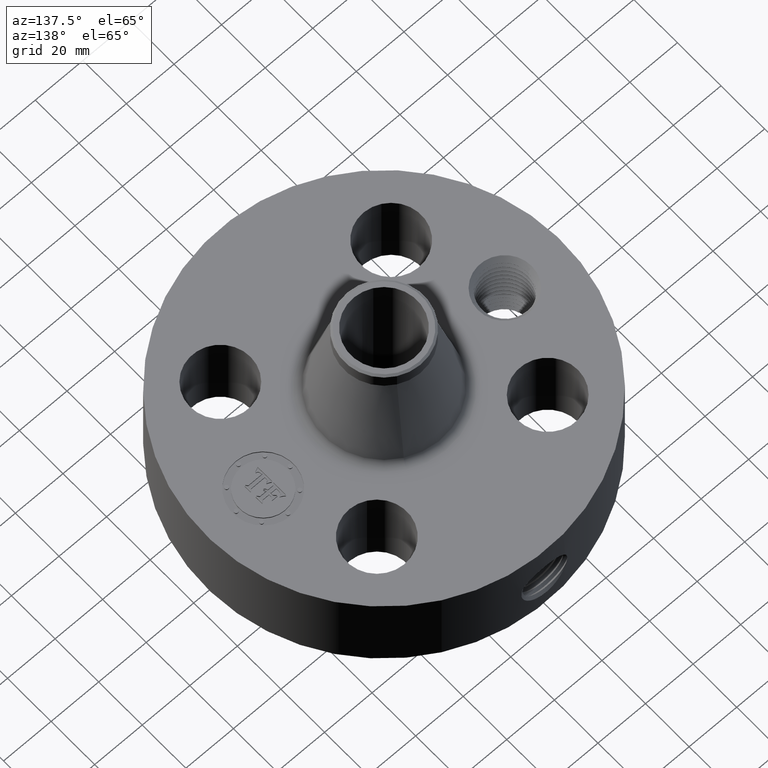
[diagram: clean part render]
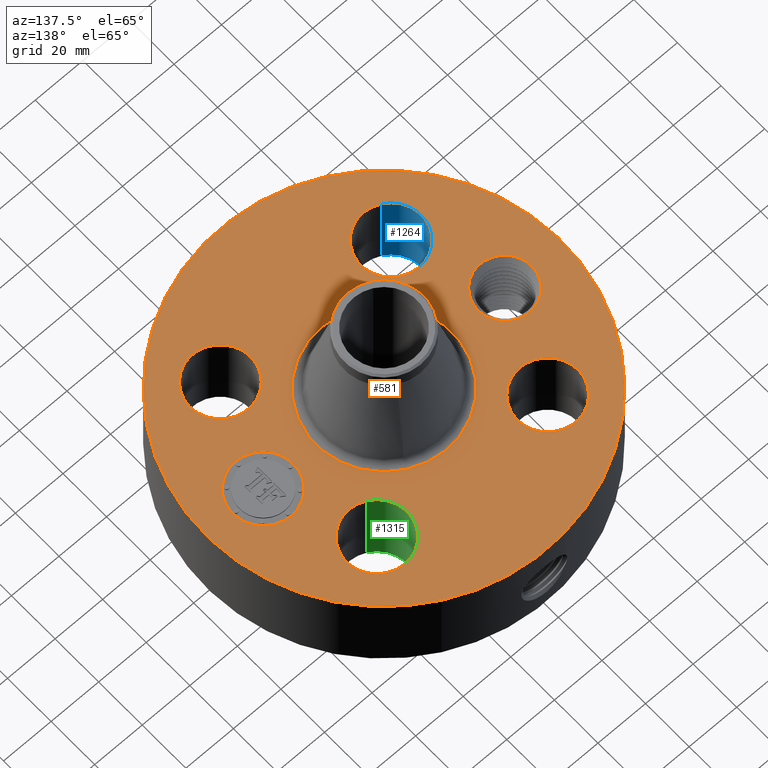
[diagram: same view with three faces highlighted in distinct colors, each labeled with its STEP entity id]
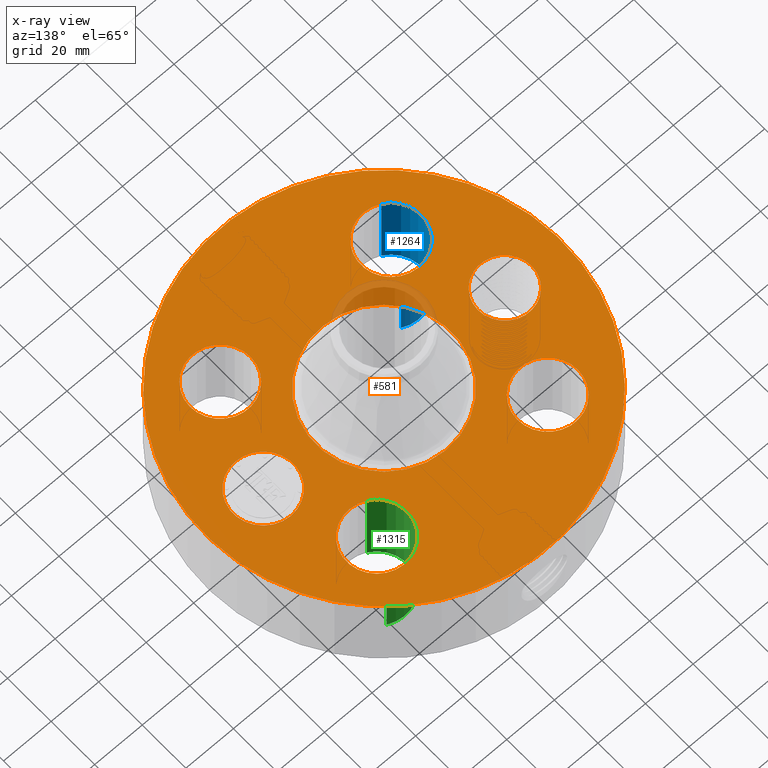
[diagram: x-ray of the same camera — body ghosted, the three highlighted faces saturated]
A machine part, auxiliary view with three faces highlighted in distinct colors.
The next image is the same camera in x-ray (body ghosted, the three faces saturated) — at least one of them is partly hidden behind the body in this view.
Their STEP definitions:

[orange] entity #581 — the highlighted planar face has unit normal (0, 0, -1).
#58=AXIS2_PLACEMENT_3D('Circle Axis2P3D',#56,#57,$) ;
#318=AXIS2_PLACEMENT_3D('Circle Axis2P3D',#316,#317,$) ;
#449=AXIS2_PLACEMENT_3D('Plane Axis2P3D',#446,#447,#448) ;
#457=AXIS2_PLACEMENT_3D('Circle Axis2P3D',#455,#456,$) ;
#466=AXIS2_PLACEMENT_3D('Circle Axis2P3D',#464,#465,$) ;
#475=AXIS2_PLACEMENT_3D('Circle Axis2P3D',#473,#474,$) ;
#484=AXIS2_PLACEMENT_3D('Circle Axis2P3D',#482,#483,$) ;
#493=AXIS2_PLACEMENT_3D('Circle Axis2P3D',#491,#492,$) ;
#502=AXIS2_PLACEMENT_3D('Circle Axis2P3D',#500,#501,$) ;
#511=AXIS2_PLACEMENT_3D('Circle Axis2P3D',#509,#510,$) ;
#520=AXIS2_PLACEMENT_3D('Circle Axis2P3D',#518,#519,$) ;
#529=AXIS2_PLACEMENT_3D('Circle Axis2P3D',#527,#528,$) ;
#538=AXIS2_PLACEMENT_3D('Circle Axis2P3D',#536,#537,$) ;
#547=AXIS2_PLACEMENT_3D('Circle Axis2P3D',#545,#546,$) ;
#556=AXIS2_PLACEMENT_3D('Circle Axis2P3D',#554,#555,$) ;
#565=AXIS2_PLACEMENT_3D('Circle Axis2P3D',#563,#564,$) ;
#574=AXIS2_PLACEMENT_3D('Circle Axis2P3D',#572,#573,$) ;
#53=CARTESIAN_POINT('Vertex',(-1.4095110835,-2.58009273197,1.75000000001)) ;
#56=CARTESIAN_POINT('Axis2P3D Location',(0.,0.,1.75000000001)) ;
#60=CARTESIAN_POINT('Vertex',(1.4095110835,2.58009273197,1.75000000001)) ;
#316=CARTESIAN_POINT('Axis2P3D Location',(0.,0.,1.75000000001)) ;
#446=CARTESIAN_POINT('Axis2P3D Location',(0.,2.94000000001,1.75000000001)) ;
#455=CARTESIAN_POINT('Axis2P3D Location',(-2.00000000001,5.59482469102E-016,1.75000000001)) ;
#459=CARTESIAN_POINT('Vertex',(-2.38859355841,0.212289628495,1.75000000001)) ;
#461=CARTESIAN_POINT('Vertex',(-1.6114064416,-0.212289628495,1.75000000001)) ;
#464=CARTESIAN_POINT('Axis2P3D Location',(-2.00000000001,5.59482469102E-016,1.75000000001)) ;
#473=CARTESIAN_POINT('Axis2P3D Location',(1.41421356238,-1.41421356238,1.75000000001)) ;
#477=CARTESIAN_POINT('Vertex',(0.975422281432,-1.17450079308,1.75000000001)) ;
#479=CARTESIAN_POINT('Vertex',(1.85300484333,-1.65392633168,1.75000000001)) ;
#482=CARTESIAN_POINT('Axis2P3D Location',(1.41421356238,-1.41421356238,1.75000000001)) ;
#491=CARTESIAN_POINT('Axis2P3D Location',(0.,0.,1.75000000001)) ;
#495=CARTESIAN_POINT('Vertex',(-0.538790503479,-0.986249401194,1.75000000001)) ;
#497=CARTESIAN_POINT('Vertex',(0.538790503479,0.986249401194,1.75000000001)) ;
#500=CARTESIAN_POINT('Axis2P3D Location',(0.,0.,1.75000000001)) ;
#509=CARTESIAN_POINT('Axis2P3D Location',(-1.41421356238,-1.41421356238,1.75000000001)) ;
#513=CARTESIAN_POINT('Vertex',(-1.65392633168,-1.85300484333,1.75000000001)) ;
#515=CARTESIAN_POINT('Vertex',(-1.17450079308,-0.975422281432,1.75000000001)) ;
#518=CARTESIAN_POINT('Axis2P3D Location',(-1.41421356238,-1.41421356238,1.75000000001)) ;
#527=CARTESIAN_POINT('Axis2P3D Location',(-1.41421356238,1.41421356238,1.75000000001)) ;
#531=CARTESIAN_POINT('Vertex',(-1.85300484333,1.65392633168,1.75000000001)) ;
#533=CARTESIAN_POINT('Vertex',(-0.975422281432,1.17450079308,1.75000000001)) ;
#536=CARTESIAN_POINT('Axis2P3D Location',(-1.41421356238,1.41421356238,1.75000000001)) ;
#545=CARTESIAN_POINT('Axis2P3D Location',(1.41421356238,1.41421356238,1.75000000001)) ;
#549=CARTESIAN_POINT('Vertex',(1.65392633168,1.85300484333,1.75000000001)) ;
#551=CARTESIAN_POINT('Vertex',(1.17450079308,0.975422281432,1.75000000001)) ;
#554=CARTESIAN_POINT('Axis2P3D Location',(1.41421356238,1.41421356238,1.75000000001)) ;
#563=CARTESIAN_POINT('Axis2P3D Location',(2.00000000001,-5.03534222192E-015,1.75000000001)) ;
#567=CARTESIAN_POINT('Vertex',(2.00000000001,0.499999995002,1.75000000001)) ;
#569=CARTESIAN_POINT('Vertex',(2.00000000001,-0.499999995002,1.75000000001)) ;
#572=CARTESIAN_POINT('Axis2P3D Location',(2.00000000001,-5.03534222192E-015,1.75000000001)) ;
#57=DIRECTION('Axis2P3D Direction',(0.,0.,-0.0393700787402)) ;
#317=DIRECTION('Axis2P3D Direction',(0.,0.,-0.0393700787402)) ;
#447=DIRECTION('Axis2P3D Direction',(0.,0.,-0.0393700787402)) ;
#448=DIRECTION('Axis2P3D XDirection',(0.0393700787402,0.,0.)) ;
#456=DIRECTION('Axis2P3D Direction',(0.,0.,-0.0393700787402)) ;
#465=DIRECTION('Axis2P3D Direction',(0.,0.,-0.0393700787402)) ;
#474=DIRECTION('Axis2P3D Direction',(0.,0.,-0.0393700787402)) ;
#483=DIRECTION('Axis2P3D Direction',(0.,0.,-0.0393700787402)) ;
#492=DIRECTION('Axis2P3D Direction',(0.,0.,-0.0393700787402)) ;
#501=DIRECTION('Axis2P3D Direction',(0.,0.,-0.0393700787402)) ;
#510=DIRECTION('Axis2P3D Direction',(0.,0.,-0.0393700787402)) ;
#519=DIRECTION('Axis2P3D Direction',(0.,0.,-0.0393700787402)) ;
#528=DIRECTION('Axis2P3D Direction',(0.,0.,-0.0393700787402)) ;
#537=DIRECTION('Axis2P3D Direction',(0.,0.,-0.0393700787402)) ;
#546=DIRECTION('Axis2P3D Direction',(0.,0.,-0.0393700787402)) ;
#555=DIRECTION('Axis2P3D Direction',(0.,0.,-0.0393700787402)) ;
#564=DIRECTION('Axis2P3D Direction',(0.,0.,-0.0393700787402)) ;
#573=DIRECTION('Axis2P3D Direction',(0.,0.,-0.0393700787402)) ;
#452=ORIENTED_EDGE('',*,*,#320,.F.) ;
#453=ORIENTED_EDGE('',*,*,#62,.F.) ;
#470=ORIENTED_EDGE('',*,*,#463,.T.) ;
#471=ORIENTED_EDGE('',*,*,#468,.T.) ;
#488=ORIENTED_EDGE('',*,*,#481,.T.) ;
#489=ORIENTED_EDGE('',*,*,#486,.T.) ;
#506=ORIENTED_EDGE('',*,*,#499,.T.) ;
#507=ORIENTED_EDGE('',*,*,#504,.T.) ;
#524=ORIENTED_EDGE('',*,*,#517,.T.) ;
#525=ORIENTED_EDGE('',*,*,#522,.T.) ;
#542=ORIENTED_EDGE('',*,*,#535,.T.) ;
#543=ORIENTED_EDGE('',*,*,#540,.T.) ;
#560=ORIENTED_EDGE('',*,*,#553,.T.) ;
#561=ORIENTED_EDGE('',*,*,#558,.T.) ;
#578=ORIENTED_EDGE('',*,*,#571,.T.) ;
#579=ORIENTED_EDGE('',*,*,#576,.T.) ;
#472=FACE_BOUND('',#469,.T.) ;
#490=FACE_BOUND('',#487,.T.) ;
#508=FACE_BOUND('',#505,.T.) ;
#526=FACE_BOUND('',#523,.T.) ;
#544=FACE_BOUND('',#541,.T.) ;
#562=FACE_BOUND('',#559,.T.) ;
#580=FACE_BOUND('',#577,.T.) ;
#581=ADVANCED_FACE('PartBody',(#454,#472,#490,#508,#526,#544,#562,#580),#450,.F.) ;
#59=CIRCLE('generated circle',#58,2.94000000001) ;
#319=CIRCLE('generated circle',#318,2.94000000001) ;
#458=CIRCLE('generated circle',#457,0.442800000002) ;
#467=CIRCLE('generated circle',#466,0.442800000002) ;
#476=CIRCLE('generated circle',#475,0.500000000002) ;
#485=CIRCLE('generated circle',#484,0.500000000002) ;
#494=CIRCLE('generated circle',#493,1.12382520349) ;
#503=CIRCLE('generated circle',#502,1.12382520349) ;
#512=CIRCLE('generated circle',#511,0.500000000002) ;
#521=CIRCLE('generated circle',#520,0.500000000002) ;
#530=CIRCLE('generated circle',#529,0.500000000002) ;
#539=CIRCLE('generated circle',#538,0.500000000002) ;
#548=CIRCLE('generated circle',#547,0.500000000002) ;
#557=CIRCLE('generated circle',#556,0.500000000002) ;
#566=CIRCLE('generated circle',#565,0.499999995002) ;
#575=CIRCLE('generated circle',#574,0.499999995002) ;
#62=EDGE_CURVE('',#54,#61,#59,.T.) ;
#320=EDGE_CURVE('',#61,#54,#319,.T.) ;
#463=EDGE_CURVE('',#460,#462,#458,.T.) ;
#468=EDGE_CURVE('',#462,#460,#467,.T.) ;
#481=EDGE_CURVE('',#478,#480,#476,.T.) ;
#486=EDGE_CURVE('',#480,#478,#485,.T.) ;
#499=EDGE_CURVE('',#496,#498,#494,.T.) ;
#504=EDGE_CURVE('',#498,#496,#503,.T.) ;
#517=EDGE_CURVE('',#514,#516,#512,.T.) ;
#522=EDGE_CURVE('',#516,#514,#521,.T.) ;
#535=EDGE_CURVE('',#532,#534,#530,.T.) ;
#540=EDGE_CURVE('',#534,#532,#539,.T.) ;
#553=EDGE_CURVE('',#550,#552,#548,.T.) ;
#558=EDGE_CURVE('',#552,#550,#557,.T.) ;
#571=EDGE_CURVE('',#568,#570,#566,.T.) ;
#576=EDGE_CURVE('',#570,#568,#575,.T.) ;
#451=EDGE_LOOP('',(#452,#453)) ;
#469=EDGE_LOOP('',(#470,#471)) ;
#487=EDGE_LOOP('',(#488,#489)) ;
#505=EDGE_LOOP('',(#506,#507)) ;
#523=EDGE_LOOP('',(#524,#525)) ;
#541=EDGE_LOOP('',(#542,#543)) ;
#559=EDGE_LOOP('',(#560,#561)) ;
#577=EDGE_LOOP('',(#578,#579)) ;
#454=FACE_OUTER_BOUND('',#451,.T.) ;
#450=PLANE('',#449) ;
#54=VERTEX_POINT('',#53) ;
#61=VERTEX_POINT('',#60) ;
#460=VERTEX_POINT('',#459) ;
#462=VERTEX_POINT('',#461) ;
#478=VERTEX_POINT('',#477) ;
#480=VERTEX_POINT('',#479) ;
#496=VERTEX_POINT('',#495) ;
#498=VERTEX_POINT('',#497) ;
#514=VERTEX_POINT('',#513) ;
#516=VERTEX_POINT('',#515) ;
#532=VERTEX_POINT('',#531) ;
#534=VERTEX_POINT('',#533) ;
#550=VERTEX_POINT('',#549) ;
#552=VERTEX_POINT('',#551) ;
#568=VERTEX_POINT('',#567) ;
#570=VERTEX_POINT('',#569) ;

[blue] entity #1264 — the highlighted cylindrical surface (partial cylindrical patch) has radius 12.7 mm, axis along (0, -0, -1).
#272=AXIS2_PLACEMENT_3D('Circle Axis2P3D',#270,#271,$) ;
#511=AXIS2_PLACEMENT_3D('Circle Axis2P3D',#509,#510,$) ;
#1239=AXIS2_PLACEMENT_3D('Cylinder Axis2P3D',#1236,#1237,#1238) ;
#265=CARTESIAN_POINT('Vertex',(-1.17450079308,-0.975422281432,0.250000000001)) ;
#267=CARTESIAN_POINT('Vertex',(-1.65392633168,-1.85300484333,0.250000000001)) ;
#270=CARTESIAN_POINT('Axis2P3D Location',(-1.41421356238,-1.41421356238,0.250000000001)) ;
#509=CARTESIAN_POINT('Axis2P3D Location',(-1.41421356238,-1.41421356238,1.75000000001)) ;
#513=CARTESIAN_POINT('Vertex',(-1.65392633168,-1.85300484333,1.75000000001)) ;
#515=CARTESIAN_POINT('Vertex',(-1.17450079308,-0.975422281432,1.75000000001)) ;
#1236=CARTESIAN_POINT('Axis2P3D Location',(-1.41421356238,-1.41421356238,1.74606299213)) ;
#1241=CARTESIAN_POINT('Line Origine',(-1.17450079308,-0.975422281432,1.)) ;
#1246=CARTESIAN_POINT('Line Origine',(-1.65392633168,-1.85300484333,1.)) ;
#271=DIRECTION('Axis2P3D Direction',(0.,0.,-0.0393700787402)) ;
#510=DIRECTION('Axis2P3D Direction',(0.,0.,-0.0393700787402)) ;
#1237=DIRECTION('Axis2P3D Direction',(0.,-0.,-0.0393700787402)) ;
#1238=DIRECTION('Axis2P3D XDirection',(-0.0188750212049,-0.0345504945626,0.)) ;
#1242=DIRECTION('Vector Direction',(0.,0.,-0.0393700787402)) ;
#1247=DIRECTION('Vector Direction',(0.,0.,-0.0393700787402)) ;
#1243=VECTOR('Line Direction',#1242,0.0393700787402) ;
#1248=VECTOR('Line Direction',#1247,0.0393700787402) ;
#1259=ORIENTED_EDGE('',*,*,#1250,.F.) ;
#1260=ORIENTED_EDGE('',*,*,#274,.T.) ;
#1261=ORIENTED_EDGE('',*,*,#1245,.T.) ;
#1262=ORIENTED_EDGE('',*,*,#517,.F.) ;
#1264=ADVANCED_FACE('PartBody',(#1263),#1240,.F.) ;
#273=CIRCLE('generated circle',#272,0.500000000002) ;
#512=CIRCLE('generated circle',#511,0.500000000002) ;
#1240=CYLINDRICAL_SURFACE('generated cylinder',#1239,0.500000000002) ;
#274=EDGE_CURVE('',#268,#266,#273,.T.) ;
#517=EDGE_CURVE('',#514,#516,#512,.T.) ;
#1245=EDGE_CURVE('',#266,#516,#1244,.F.) ;
#1250=EDGE_CURVE('',#268,#514,#1249,.F.) ;
#1258=EDGE_LOOP('',(#1259,#1260,#1261,#1262)) ;
#1263=FACE_OUTER_BOUND('',#1258,.T.) ;
#1244=LINE('Line',#1241,#1243) ;
#1249=LINE('Line',#1246,#1248) ;
#266=VERTEX_POINT('',#265) ;
#268=VERTEX_POINT('',#267) ;
#514=VERTEX_POINT('',#513) ;
#516=VERTEX_POINT('',#515) ;

[green] entity #1315 — the highlighted cylindrical surface (partial cylindrical patch) has radius 12.7 mm, axis along (0, 0, -1).
#299=AXIS2_PLACEMENT_3D('Circle Axis2P3D',#297,#298,$) ;
#556=AXIS2_PLACEMENT_3D('Circle Axis2P3D',#554,#555,$) ;
#1297=AXIS2_PLACEMENT_3D('Cylinder Axis2P3D',#1294,#1295,#1296) ;
#297=CARTESIAN_POINT('Axis2P3D Location',(1.41421356238,1.41421356238,0.250000000001)) ;
#301=CARTESIAN_POINT('Vertex',(1.17450079308,0.975422281432,0.250000000001)) ;
#303=CARTESIAN_POINT('Vertex',(1.65392633168,1.85300484333,0.250000000001)) ;
#549=CARTESIAN_POINT('Vertex',(1.65392633168,1.85300484333,1.75000000001)) ;
#551=CARTESIAN_POINT('Vertex',(1.17450079308,0.975422281432,1.75000000001)) ;
#554=CARTESIAN_POINT('Axis2P3D Location',(1.41421356238,1.41421356238,1.75000000001)) ;
#1294=CARTESIAN_POINT('Axis2P3D Location',(1.41421356238,1.41421356238,1.74606299213)) ;
#1299=CARTESIAN_POINT('Line Origine',(1.17450079308,0.975422281432,1.)) ;
#1304=CARTESIAN_POINT('Line Origine',(1.65392633168,1.85300484333,1.)) ;
#298=DIRECTION('Axis2P3D Direction',(0.,0.,-0.0393700787402)) ;
#555=DIRECTION('Axis2P3D Direction',(0.,0.,-0.0393700787402)) ;
#1295=DIRECTION('Axis2P3D Direction',(0.,0.,-0.0393700787402)) ;
#1296=DIRECTION('Axis2P3D XDirection',(0.0188750212049,0.0345504945626,0.)) ;
#1300=DIRECTION('Vector Direction',(0.,0.,-0.0393700787402)) ;
#1305=DIRECTION('Vector Direction',(0.,0.,-0.0393700787402)) ;
#1301=VECTOR('Line Direction',#1300,0.0393700787402) ;
#1306=VECTOR('Line Direction',#1305,0.0393700787402) ;
#1310=ORIENTED_EDGE('',*,*,#1303,.F.) ;
#1311=ORIENTED_EDGE('',*,*,#305,.T.) ;
#1312=ORIENTED_EDGE('',*,*,#1308,.T.) ;
#1313=ORIENTED_EDGE('',*,*,#558,.F.) ;
#1315=ADVANCED_FACE('PartBody',(#1314),#1298,.F.) ;
#300=CIRCLE('generated circle',#299,0.500000000002) ;
#557=CIRCLE('generated circle',#556,0.500000000002) ;
#1298=CYLINDRICAL_SURFACE('generated cylinder',#1297,0.500000000002) ;
#305=EDGE_CURVE('',#302,#304,#300,.T.) ;
#558=EDGE_CURVE('',#552,#550,#557,.T.) ;
#1303=EDGE_CURVE('',#302,#552,#1302,.F.) ;
#1308=EDGE_CURVE('',#304,#550,#1307,.F.) ;
#1309=EDGE_LOOP('',(#1310,#1311,#1312,#1313)) ;
#1314=FACE_OUTER_BOUND('',#1309,.T.) ;
#1302=LINE('Line',#1299,#1301) ;
#1307=LINE('Line',#1304,#1306) ;
#302=VERTEX_POINT('',#301) ;
#304=VERTEX_POINT('',#303) ;
#550=VERTEX_POINT('',#549) ;
#552=VERTEX_POINT('',#551) ;